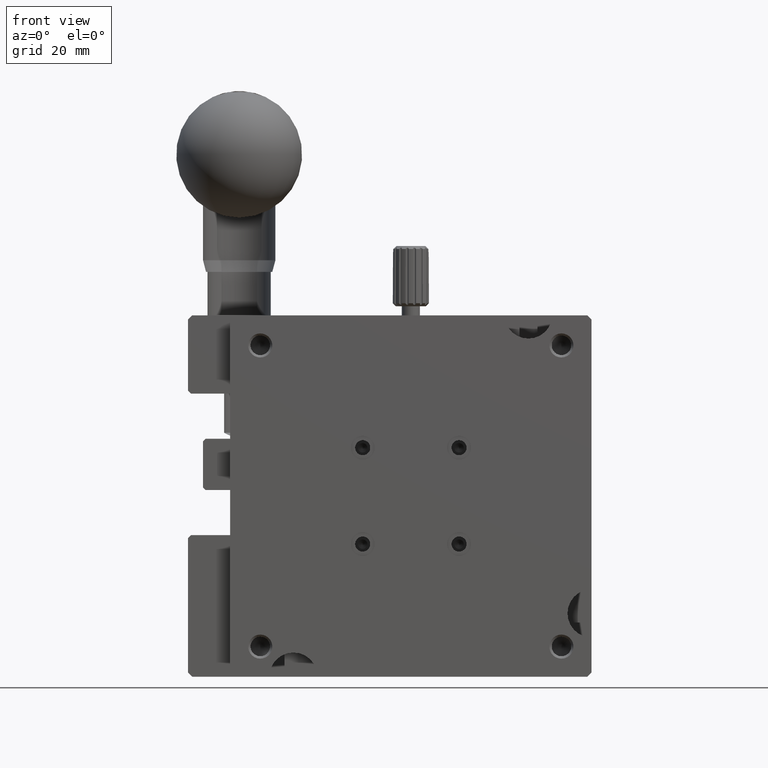
[diagram: clean part render]
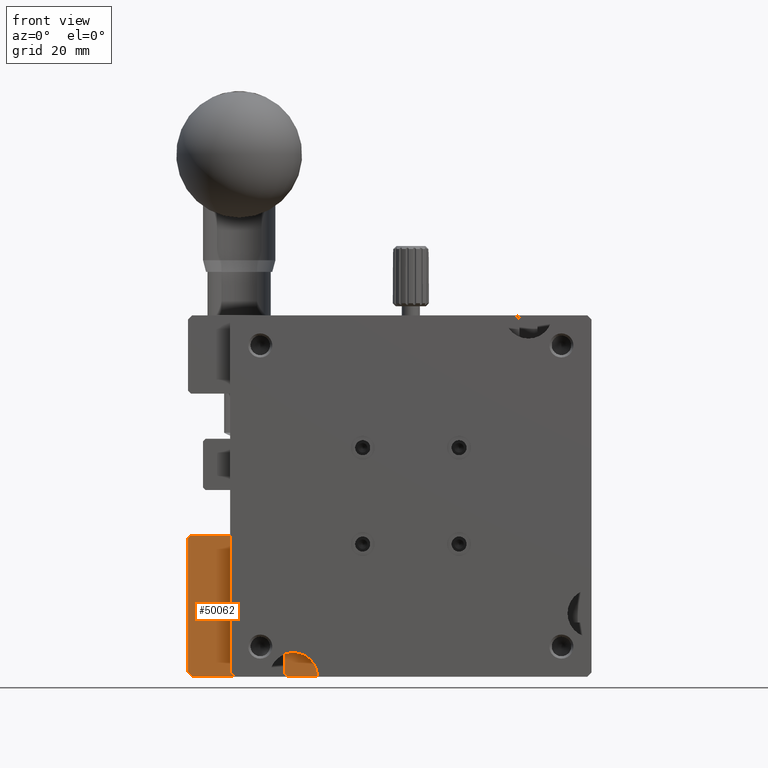
[diagram: same view with one face highlighted and labeled with its STEP entity id]
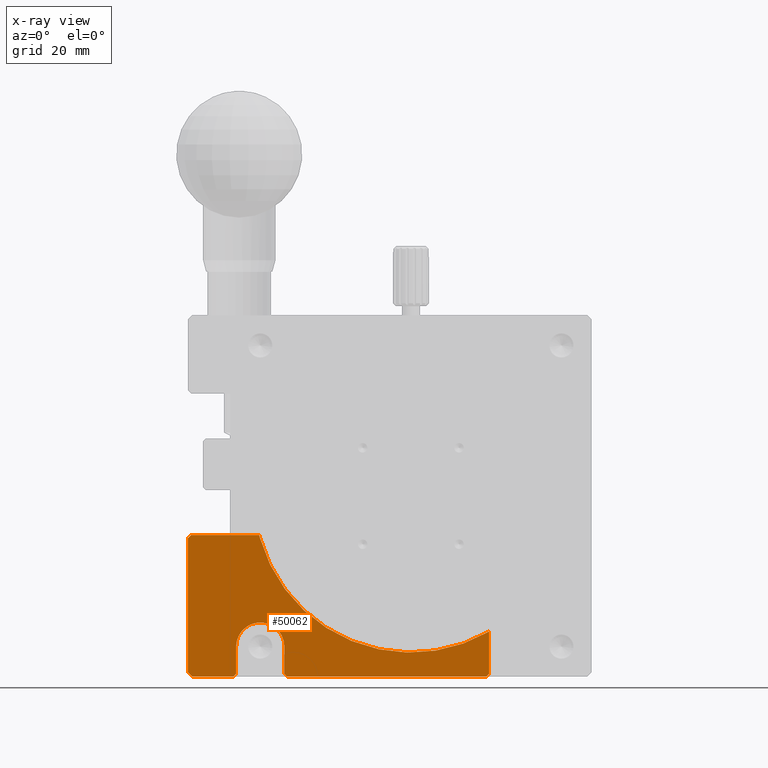
[diagram: x-ray of the same camera — body ghosted, the highlighted face saturated]
A machine part, front view. The second image highlights one B-rep face of the part: STEP entity #50062.
The next image is the same camera in x-ray: the body ghosted, the highlighted face saturated — about 0% of this face is hidden behind the body in this view.
In plain terms, the highlighted planar face has unit normal (0, 1, 0).
Its self-contained STEP definition (entity closure, byte-faithful):
#629 = LINE ( 'NONE', #47903, #11854 ) ;
#1279 = CIRCLE ( 'NONE', #63630, 26.00000000000000711 ) ;
#1899 = ORIENTED_EDGE ( 'NONE', *, *, #51061, .F. ) ;
#1933 = CARTESIAN_POINT ( 'NONE',  ( 43.00000000000002132, 7.500000000000000000, -52.51700000000020196 ) ) ;
#2072 = EDGE_CURVE ( 'NONE', #12765, #38265, #629, .T. ) ;
#2110 = ORIENTED_EDGE ( 'NONE', *, *, #41222, .T. ) ;
#2729 = DIRECTION ( 'NONE',  ( -0.7071067811865524577, 0.000000000000000000, 0.7071067811865426878 ) ) ;
#5691 = VECTOR ( 'NONE', #8056, 1000.000000000000000 ) ;
#5957 = VERTEX_POINT ( 'NONE', #83105 ) ;
#6135 = DIRECTION ( 'NONE',  ( 0.7071067811865470176, 0.000000000000000000, 0.7071067811865480168 ) ) ;
#6220 = CARTESIAN_POINT ( 'NONE',  ( 9.000000000000001776, 7.500000000000000000, -55.00000000000000000 ) ) ;
#6348 = LINE ( 'NONE', #32326, #12316 ) ;
#8056 = DIRECTION ( 'NONE',  ( -1.000000000000000000, 0.000000000000000000, -0.000000000000000000 ) ) ;
#9047 = VERTEX_POINT ( 'NONE', #56019 ) ;
#10635 = ORIENTED_EDGE ( 'NONE', *, *, #72974, .F. ) ;
#10956 = VERTEX_POINT ( 'NONE', #1933 ) ;
#11729 = VECTOR ( 'NONE', #59406, 1000.000000000000000 ) ;
#11854 = VECTOR ( 'NONE', #54844, 1000.000000000000000 ) ;
#11876 = LINE ( 'NONE', #19653, #73886 ) ;
#12316 = VECTOR ( 'NONE', #51915, 1000.000000000000000 ) ;
#12620 = LINE ( 'NONE', #51708, #66483 ) ;
#12765 = VERTEX_POINT ( 'NONE', #48505 ) ;
#16606 = CARTESIAN_POINT ( 'NONE',  ( 0.4999999999999995559, 7.500000000000000000, -60.00000000000000000 ) ) ;
#17572 = DIRECTION ( 'NONE',  ( -0.000000000000000000, 0.000000000000000000, -1.000000000000000000 ) ) ;
#18092 = EDGE_CURVE ( 'NONE', #9047, #85235, #80704, .T. ) ;
#18365 = CARTESIAN_POINT ( 'NONE',  ( 5.000000000000000000, 7.500000000000000000, -55.00000000000000000 ) ) ;
#19653 = CARTESIAN_POINT ( 'NONE',  ( 5.000000000000000000, 7.500000000000000000, -36.50000000000000000 ) ) ;
#19710 = CARTESIAN_POINT ( 'NONE',  ( 0.9999999999999931166, 7.499999999999998224, -59.50000000000002132 ) ) ;
#20305 = DIRECTION ( 'NONE',  ( -0.000000000000000000, 1.000000000000000000, -0.000000000000000000 ) ) ;
#21163 = CARTESIAN_POINT ( 'NONE',  ( -7.000000000000000000, 7.500000000000000000, -59.28999999999999915 ) ) ;
#21869 = LINE ( 'NONE', #68350, #5691 ) ;
#24688 = VECTOR ( 'NONE', #66868, 1000.000000000000000 ) ;
#24924 = LINE ( 'NONE', #51466, #47038 ) ;
#25645 = VERTEX_POINT ( 'NONE', #30658 ) ;
#26318 = ORIENTED_EDGE ( 'NONE', *, *, #57417, .F. ) ;
#28287 = CARTESIAN_POINT ( 'NONE',  ( -7.000000000000000000, 7.500000000000000000, -59.28999999999999915 ) ) ;
#28956 = EDGE_CURVE ( 'NONE', #5957, #10956, #1279, .T. ) ;
#29192 = VERTEX_POINT ( 'NONE', #84075 ) ;
#30658 = CARTESIAN_POINT ( 'NONE',  ( 9.500000000000005329, 7.500000000000000000, -60.00000000000000000 ) ) ;
#30961 = ORIENTED_EDGE ( 'NONE', *, *, #50199, .F. ) ;
#31281 = ORIENTED_EDGE ( 'NONE', *, *, #78256, .F. ) ;
#32326 = CARTESIAN_POINT ( 'NONE',  ( 59.28999999999999915, 7.500000000000000000, -60.00000000000000000 ) ) ;
#33491 = DIRECTION ( 'NONE',  ( 0.000000000000000000, -1.000000000000000000, 0.000000000000000000 ) ) ;
#35188 = VECTOR ( 'NONE', #85105, 1000.000000000000000 ) ;
#35225 = CARTESIAN_POINT ( 'NONE',  ( -6.500000000000003553, 7.499999999999998224, -36.50000000000000000 ) ) ;
#36541 = VECTOR ( 'NONE', #83750, 1000.000000000000000 ) ;
#37505 = EDGE_CURVE ( 'NONE', #25645, #9047, #61323, .T. ) ;
#38265 = VERTEX_POINT ( 'NONE', #21163 ) ;
#38341 = DIRECTION ( 'NONE',  ( 1.000000000000000000, 0.000000000000000000, -0.000000000000000000 ) ) ;
#38527 = ORIENTED_EDGE ( 'NONE', *, *, #81153, .F. ) ;
#40095 = ORIENTED_EDGE ( 'NONE', *, *, #28956, .F. ) ;
#40232 = CIRCLE ( 'NONE', #59672, 3.999999999999996447 ) ;
#40259 = LINE ( 'NONE', #66333, #11729 ) ;
#40370 = CARTESIAN_POINT ( 'NONE',  ( 9.000000000000001776, 7.500000000000000000, 0.000000000000000000 ) ) ;
#40475 = LINE ( 'NONE', #28287, #68380 ) ;
#40702 = CARTESIAN_POINT ( 'NONE',  ( 29.99241115303990313, 7.500000000000000000, -29.97302398867919848 ) ) ;
#41065 = VERTEX_POINT ( 'NONE', #57291 ) ;
#41222 = EDGE_CURVE ( 'NONE', #5957, #41065, #79337, .T. ) ;
#43592 = VERTEX_POINT ( 'NONE', #35225 ) ;
#43709 = EDGE_CURVE ( 'NONE', #43592, #41065, #11876, .T. ) ;
#44571 = EDGE_CURVE ( 'NONE', #38265, #65813, #40475, .T. ) ;
#46530 = VERTEX_POINT ( 'NONE', #16606 ) ;
#47038 = VECTOR ( 'NONE', #17572, 1000.000000000000000 ) ;
#47731 = ORIENTED_EDGE ( 'NONE', *, *, #44571, .F. ) ;
#47903 = CARTESIAN_POINT ( 'NONE',  ( -6.290000000000012470, 7.500000000000000000, -60.00000000000000000 ) ) ;
#48118 = VERTEX_POINT ( 'NONE', #73719 ) ;
#48377 = CARTESIAN_POINT ( 'NONE',  ( -7.000000000000000888, 7.500000000000000000, -37.00000000000000000 ) ) ;
#48505 = CARTESIAN_POINT ( 'NONE',  ( -6.290000000000010694, 7.500000000000000000, -60.00000000000000000 ) ) ;
#50062 = ADVANCED_FACE ( 'NONE', ( #53982 ), #60904, .F. ) ;
#50199 = EDGE_CURVE ( 'NONE', #48118, #29192, #58692, .T. ) ;
#51061 = EDGE_CURVE ( 'NONE', #72227, #46530, #40259, .T. ) ;
#51466 = CARTESIAN_POINT ( 'NONE',  ( 43.00000000000000000, 7.500000000000000000, 0.000000000000000000 ) ) ;
#51708 = CARTESIAN_POINT ( 'NONE',  ( -6.500000000000002665, 7.500000000000000000, -36.50000000000000000 ) ) ;
#51915 = DIRECTION ( 'NONE',  ( -1.000000000000000000, 0.000000000000000000, -0.000000000000000000 ) ) ;
#52631 = ORIENTED_EDGE ( 'NONE', *, *, #37505, .F. ) ;
#53060 = AXIS2_PLACEMENT_3D ( 'NONE', #40702, #20305, #60253 ) ;
#53982 = FACE_OUTER_BOUND ( 'NONE', #66580, .T. ) ;
#54402 = CARTESIAN_POINT ( 'NONE',  ( 9.500000000000001776, 7.500000000000000000, -60.00000000000000000 ) ) ;
#54411 = DIRECTION ( 'NONE',  ( 0.000000000000000000, -0.000000000000000000, 1.000000000000000000 ) ) ;
#54844 = DIRECTION ( 'NONE',  ( -0.7071067811865439090, 0.000000000000000000, 0.7071067811865512365 ) ) ;
#56019 = CARTESIAN_POINT ( 'NONE',  ( 9.000000000000001776, 7.499999999999998224, -59.50000000000000000 ) ) ;
#56622 = DIRECTION ( 'NONE',  ( 0.000000000000000000, 0.000000000000000000, -1.000000000000000000 ) ) ;
#56929 = LINE ( 'NONE', #57361, #36541 ) ;
#57291 = CARTESIAN_POINT ( 'NONE',  ( 4.825000000000423839, 7.500000000000000000, -36.50000000000000000 ) ) ;
#57361 = CARTESIAN_POINT ( 'NONE',  ( 1.000000000000000000, 7.500000000000000000, 0.000000000000000000 ) ) ;
#57417 = EDGE_CURVE ( 'NONE', #74897, #72227, #56929, .T. ) ;
#58692 = LINE ( 'NONE', #84235, #35188 ) ;
#59178 = DIRECTION ( 'NONE',  ( 0.000000000000000000, 0.000000000000000000, -1.000000000000000000 ) ) ;
#59406 = DIRECTION ( 'NONE',  ( -0.7071067811865524577, 0.000000000000000000, -0.7071067811865426878 ) ) ;
#59489 = CARTESIAN_POINT ( 'NONE',  ( 1.000000000000000000, 7.500000000000000000, -55.00000000000000000 ) ) ;
#59672 = AXIS2_PLACEMENT_3D ( 'NONE', #18365, #77412, #56622 ) ;
#60253 = DIRECTION ( 'NONE',  ( 1.507875021427675565E-14, 0.000000000000000000, -1.000000000000000000 ) ) ;
#60581 = ORIENTED_EDGE ( 'NONE', *, *, #2072, .F. ) ;
#60904 = PLANE ( 'NONE',  #72660 ) ;
#61323 = LINE ( 'NONE', #54402, #66838 ) ;
#63130 = EDGE_CURVE ( 'NONE', #46530, #12765, #6348, .T. ) ;
#63164 = ORIENTED_EDGE ( 'NONE', *, *, #43709, .F. ) ;
#63630 = AXIS2_PLACEMENT_3D ( 'NONE', #66519, #33491, #59178 ) ;
#65813 = VERTEX_POINT ( 'NONE', #48377 ) ;
#66333 = CARTESIAN_POINT ( 'NONE',  ( 1.000000000000000000, 7.500000000000000000, -59.50000000000000711 ) ) ;
#66483 = VECTOR ( 'NONE', #6135, 1000.000000000000000 ) ;
#66519 = CARTESIAN_POINT ( 'NONE',  ( 30.00005420853400651, 7.500000000000000000, -30.00030820438010437 ) ) ;
#66580 = EDGE_LOOP ( 'NONE', ( #26318, #31281, #70553, #52631, #38527, #30961, #10635, #40095, #2110, #63164, #68189, #47731, #60581, #75337, #1899 ) ) ;
#66838 = VECTOR ( 'NONE', #2729, 1000.000000000000000 ) ;
#66848 = EDGE_CURVE ( 'NONE', #65813, #43592, #12620, .T. ) ;
#66868 = DIRECTION ( 'NONE',  ( 0.000000000000000000, -0.000000000000000000, 1.000000000000000000 ) ) ;
#68189 = ORIENTED_EDGE ( 'NONE', *, *, #66848, .F. ) ;
#68350 = CARTESIAN_POINT ( 'NONE',  ( 59.28999999999999915, 7.500000000000000000, -60.00000000000000000 ) ) ;
#68380 = VECTOR ( 'NONE', #81217, 1000.000000000000000 ) ;
#70553 = ORIENTED_EDGE ( 'NONE', *, *, #18092, .F. ) ;
#72227 = VERTEX_POINT ( 'NONE', #19710 ) ;
#72660 = AXIS2_PLACEMENT_3D ( 'NONE', #80830, #80408, #54411 ) ;
#72974 = EDGE_CURVE ( 'NONE', #10956, #48118, #24924, .T. ) ;
#73719 = CARTESIAN_POINT ( 'NONE',  ( 43.00000000000000000, 7.499999999999998224, -59.50000000000002132 ) ) ;
#73886 = VECTOR ( 'NONE', #38341, 1000.000000000000000 ) ;
#74897 = VERTEX_POINT ( 'NONE', #59489 ) ;
#75337 = ORIENTED_EDGE ( 'NONE', *, *, #63130, .F. ) ;
#77412 = DIRECTION ( 'NONE',  ( 0.000000000000000000, -1.000000000000000000, 0.000000000000000000 ) ) ;
#78256 = EDGE_CURVE ( 'NONE', #85235, #74897, #40232, .T. ) ;
#79337 = CIRCLE ( 'NONE', #53060, 25.99999999997100275 ) ;
#80408 = DIRECTION ( 'NONE',  ( 0.000000000000000000, 1.000000000000000000, 0.000000000000000000 ) ) ;
#80704 = LINE ( 'NONE', #40370, #24688 ) ;
#80830 = CARTESIAN_POINT ( 'NONE',  ( -7.000000000000000000, 7.500000000000000000, 0.000000000000000000 ) ) ;
#81153 = EDGE_CURVE ( 'NONE', #29192, #25645, #21869, .T. ) ;
#81217 = DIRECTION ( 'NONE',  ( 0.000000000000000000, 0.000000000000000000, 1.000000000000000000 ) ) ;
#83105 = CARTESIAN_POINT ( 'NONE',  ( 4.959999999845924989, 7.500000000000000000, -36.99999999944954254 ) ) ;
#83750 = DIRECTION ( 'NONE',  ( -0.000000000000000000, 0.000000000000000000, -1.000000000000000000 ) ) ;
#84075 = CARTESIAN_POINT ( 'NONE',  ( 42.50000000000000000, 7.500000000000000000, -60.00000000000000000 ) ) ;
#84235 = CARTESIAN_POINT ( 'NONE',  ( 43.00000000000000000, 7.500000000000000000, -59.50000000000000711 ) ) ;
#85105 = DIRECTION ( 'NONE',  ( -0.7071067811865524577, 0.000000000000000000, -0.7071067811865426878 ) ) ;
#85235 = VERTEX_POINT ( 'NONE', #6220 ) ;